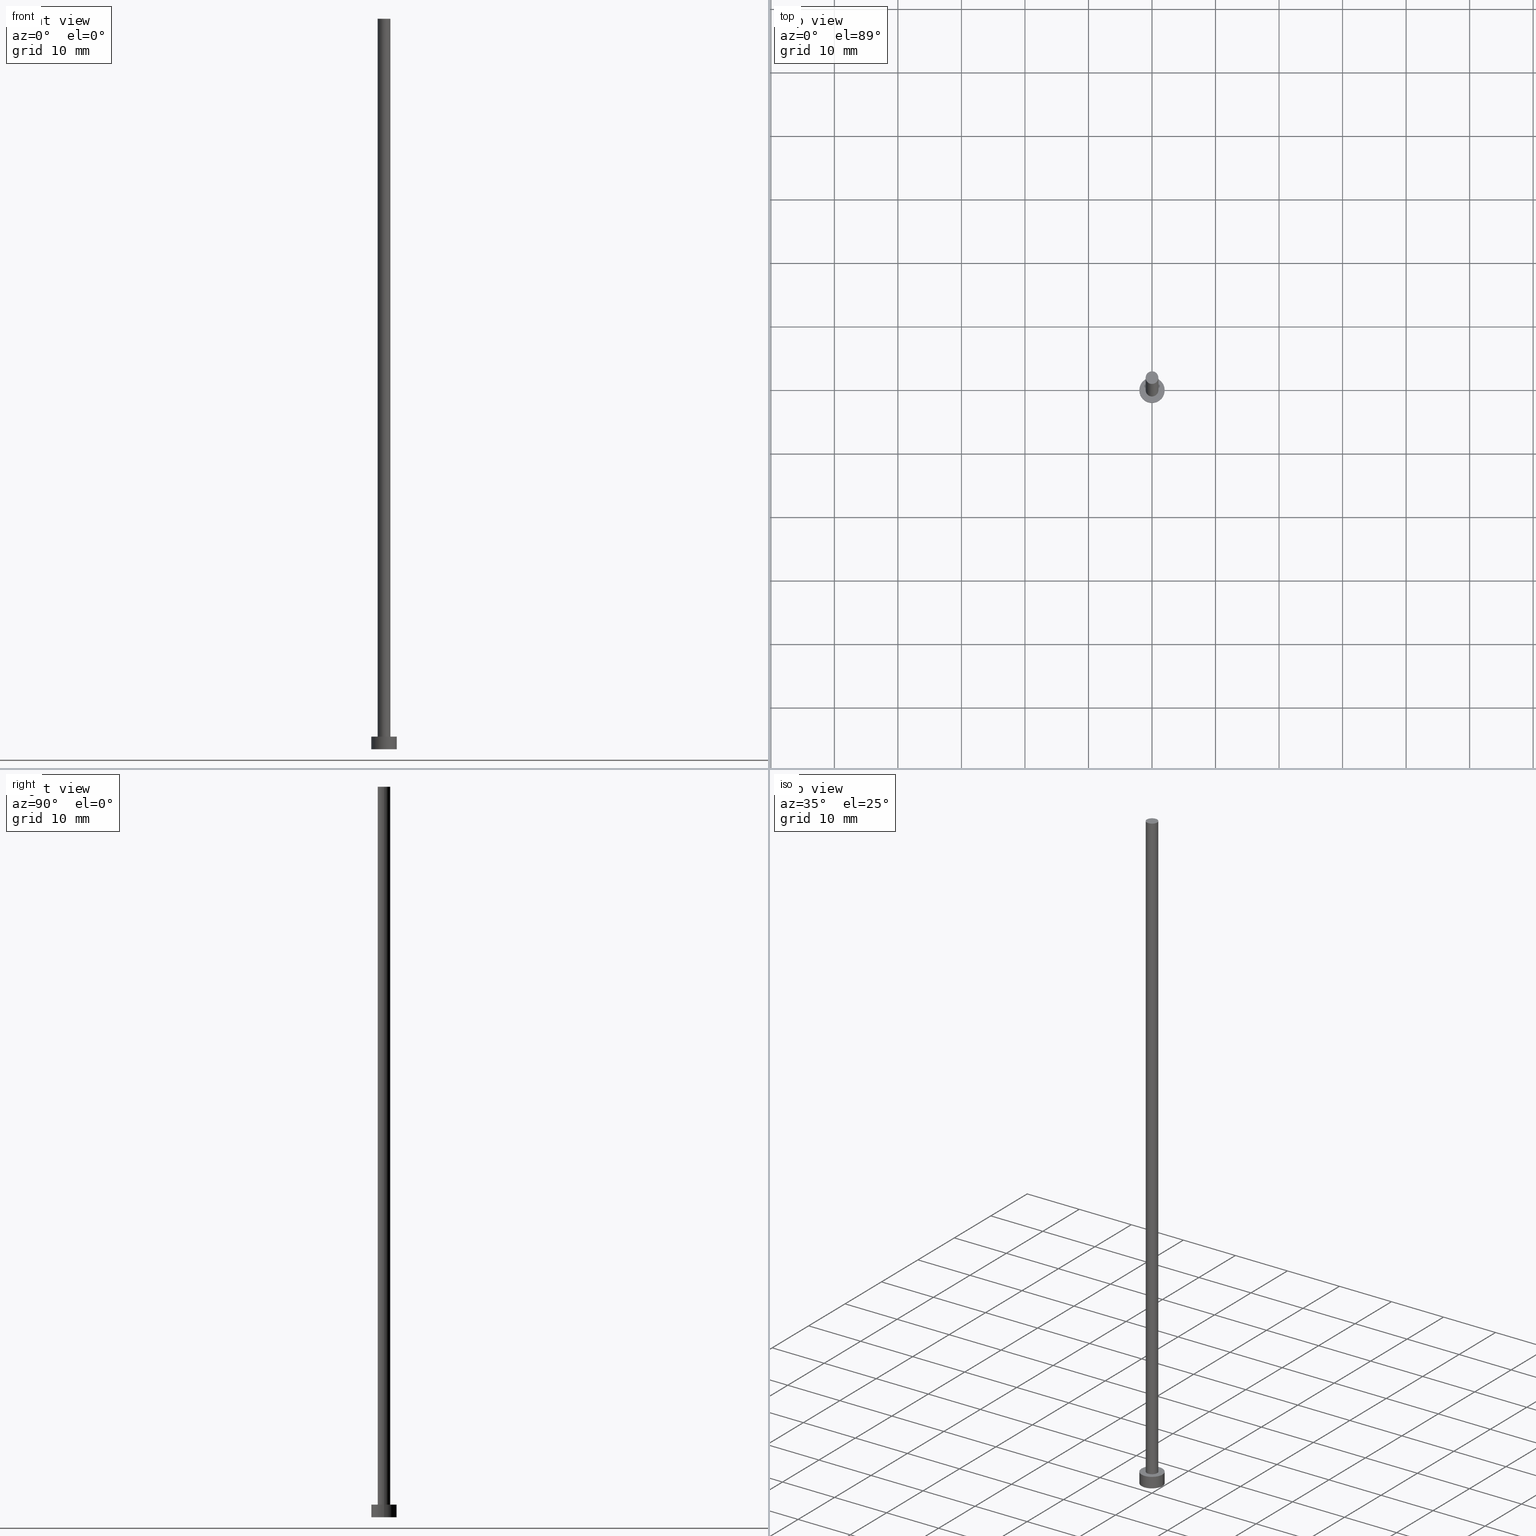
[diagram: canonical four-view strip — front | top / right | iso, engineering-drawing reading convention]
A machine part, canonical four-view strip (front | top / right | iso — engineering-drawing reading convention). The complete STEP part file that produces these views, byte-faithful:
ISO-10303-21;
HEADER;
FILE_DESCRIPTION (( 'STEP AP203' ),
    '1' );
FILE_NAME ('107b.STEP',
    '2024-02-22T09:03:25',
    ( '' ),
    ( '' ),
    'SwSTEP 2.0',
    'SolidWorks 2019',
    '' );
FILE_SCHEMA (( 'CONFIG_CONTROL_DESIGN' ));
ENDSEC;

DATA;
#1 = FACE_OUTER_BOUND ( 'NONE', #215, .T. ) ;
#2 = CARTESIAN_POINT ( 'NONE',  ( 0.000000000000000000, 0.000000000000000000, 2.000000000000000000 ) ) ;
#3 = LINE ( 'NONE', #217, #131 ) ;
#4 = DATE_AND_TIME ( #188, #133 ) ;
#5 = CALENDAR_DATE ( 2024, 22, 2 ) ;
#6 = APPROVAL_PERSON_ORGANIZATION ( #207, #223, #148 ) ;
#7 = APPROVAL_DATE_TIME ( #86, #244 ) ;
#8 = DIRECTION ( 'NONE',  ( 0.000000000000000000, 0.000000000000000000, 1.000000000000000000 ) ) ;
#9 = DIRECTION ( 'NONE',  ( 1.000000000000000000, 0.000000000000000000, -0.000000000000000000 ) ) ;
#10 = ORIENTED_EDGE ( 'NONE', *, *, #108, .T. ) ;
#11 = EDGE_CURVE ( 'NONE', #198, #74, #241, .T. ) ;
#12 = EDGE_LOOP ( 'NONE', ( #54, #33 ) ) ;
#13 = PRODUCT_DEFINITION_FORMATION_WITH_SPECIFIED_SOURCE ( 'LIBOVOLN�', '', #249, .NOT_KNOWN. ) ;
#14 = PERSON_AND_ORGANIZATION ( #246, #103 ) ;
#15 = DIRECTION ( 'NONE',  ( 1.000000000000000000, 0.000000000000000000, 0.000000000000000000 ) ) ;
#16 = ORIENTED_EDGE ( 'NONE', *, *, #234, .T. ) ;
#17 = APPROVAL ( #130, 'NEUR�EN�' ) ;
#18 = CARTESIAN_POINT ( 'NONE',  ( 0.000000000000000000, 0.000000000000000000, 115.0000000000000000 ) ) ;
#19 = DIRECTION ( 'NONE',  ( -1.000000000000000000, 0.000000000000000000, 0.000000000000000000 ) ) ;
#20 = DIRECTION ( 'NONE',  ( -0.000000000000000000, -0.000000000000000000, -1.000000000000000000 ) ) ;
#21 = CC_DESIGN_DATE_AND_TIME_ASSIGNMENT ( #175, #37, ( #113 ) ) ;
#22 = DIRECTION ( 'NONE',  ( -0.000000000000000000, -0.000000000000000000, -1.000000000000000000 ) ) ;
#23 = CYLINDRICAL_SURFACE ( 'NONE', #226, 2.000000000000000000 ) ;
#24 = PERSON_AND_ORGANIZATION ( #246, #103 ) ;
#25 = EDGE_CURVE ( 'NONE', #195, #136, #159, .T. ) ;
#26 = PERSON_AND_ORGANIZATION ( #246, #103 ) ;
#27 = APPROVAL_STATUS ( 'not_yet_approved' ) ;
#28 = AXIS2_PLACEMENT_3D ( 'NONE', #214, #35, #15 ) ;
#29 = APPROVAL_PERSON_ORGANIZATION ( #178, #17, #32 ) ;
#30 = COORDINATED_UNIVERSAL_TIME_OFFSET ( 1, 0, .AHEAD. ) ;
#31 = CARTESIAN_POINT ( 'NONE',  ( 0.000000000000000000, 0.000000000000000000, 0.000000000000000000 ) ) ;
#32 = APPROVAL_ROLE ( '' ) ;
#33 = ORIENTED_EDGE ( 'NONE', *, *, #194, .F. ) ;
#34 = PERSON_AND_ORGANIZATION_ROLE ( 'classification_officer' ) ;
#35 = DIRECTION ( 'NONE',  ( 0.000000000000000000, 0.000000000000000000, 1.000000000000000000 ) ) ;
#36 = CC_DESIGN_APPROVAL ( #17, ( #113 ) ) ;
#37 = DATE_TIME_ROLE ( 'classification_date' ) ;
#38 = EDGE_LOOP ( 'NONE', ( #180, #229, #179, #91 ) ) ;
#39 = ADVANCED_FACE ( 'NONE', ( #60, #201 ), #185, .T. ) ;
#40 = CYLINDRICAL_SURFACE ( 'NONE', #41, 2.000000000000000000 ) ;
#41 = AXIS2_PLACEMENT_3D ( 'NONE', #2, #166, #19 ) ;
#42 = DIRECTION ( 'NONE',  ( 1.000000000000000000, 0.000000000000000000, 0.000000000000000000 ) ) ;
#43 = DIRECTION ( 'NONE',  ( -1.000000000000000000, 0.000000000000000000, 0.000000000000000000 ) ) ;
#44 = CARTESIAN_POINT ( 'NONE',  ( 0.000000000000000000, 0.000000000000000000, 115.0000000000000000 ) ) ;
#45 = CARTESIAN_POINT ( 'NONE',  ( 0.000000000000000000, 0.000000000000000000, 115.0000000000000000 ) ) ;
#46 = APPLICATION_CONTEXT ( 'configuration controlled 3d designs of mechanical parts and assemblies' ) ;
#47 = APPLICATION_PROTOCOL_DEFINITION ( 'international standard', 'config_control_design', 1994, #46 ) ;
#48 = PERSON_AND_ORGANIZATION ( #246, #103 ) ;
#49 = EDGE_CURVE ( 'NONE', #152, #195, #196, .T. ) ;
#50 = ADVANCED_BREP_SHAPE_REPRESENTATION ( '107b', ( #66, #110 ), #210 ) ;
#51 = APPLICATION_CONTEXT ( 'configuration controlled 3d designs of mechanical parts and assemblies' ) ;
#52 = EDGE_LOOP ( 'NONE', ( #174, #16 ) ) ;
#53 = LOCAL_TIME ( 10, 3, 25.00000000000000000, #250 ) ;
#54 = ORIENTED_EDGE ( 'NONE', *, *, #65, .F. ) ;
#55 = ORIENTED_EDGE ( 'NONE', *, *, #212, .T. ) ;
#56 = EDGE_CURVE ( 'NONE', #198, #93, #105, .T. ) ;
#57 = ORIENTED_EDGE ( 'NONE', *, *, #11, .F. ) ;
#58 = DIRECTION ( 'NONE',  ( 1.000000000000000000, 0.000000000000000000, 0.000000000000000000 ) ) ;
#59 = PRODUCT_DEFINITION ( 'NEZN�M�', '', #13, #115 ) ;
#60 = FACE_BOUND ( 'NONE', #12, .T. ) ;
#61 = AXIS2_PLACEMENT_3D ( 'NONE', #64, #139, #233 ) ;
#62 = CARTESIAN_POINT ( 'NONE',  ( 1.000000000000000000, 1.224646799147353207E-16, 2.000000000000000000 ) ) ;
#63 = DIRECTION ( 'NONE',  ( 1.000000000000000000, 0.000000000000000000, 0.000000000000000000 ) ) ;
#64 = CARTESIAN_POINT ( 'NONE',  ( 0.000000000000000000, 0.000000000000000000, 2.000000000000000000 ) ) ;
#65 = EDGE_CURVE ( 'NONE', #213, #136, #200, .T. ) ;
#66 = MANIFOLD_SOLID_BREP ( 'P�idat vysunut�m3', #96 ) ;
#67 = PLANE ( 'NONE',  #182 ) ;
#68 = PRODUCT_RELATED_PRODUCT_CATEGORY ( 'detail', '', ( #249 ) ) ;
#69 = FACE_OUTER_BOUND ( 'NONE', #172, .T. ) ;
#70 =( LENGTH_UNIT ( ) NAMED_UNIT ( * ) SI_UNIT ( .MILLI., .METRE. ) );
#71 = DIRECTION ( 'NONE',  ( 1.000000000000000000, 0.000000000000000000, 0.000000000000000000 ) ) ;
#72 = DATE_AND_TIME ( #92, #155 ) ;
#73 = ORIENTED_EDGE ( 'NONE', *, *, #49, .T. ) ;
#74 = VERTEX_POINT ( 'NONE', #143 ) ;
#75 = SHAPE_DEFINITION_REPRESENTATION ( #157, #50 ) ;
#76 = ORIENTED_EDGE ( 'NONE', *, *, #56, .F. ) ;
#77 = AXIS2_PLACEMENT_3D ( 'NONE', #45, #203, #42 ) ;
#78 = DIRECTION ( 'NONE',  ( -0.000000000000000000, -0.000000000000000000, -1.000000000000000000 ) ) ;
#79 = ADVANCED_FACE ( 'NONE', ( #1 ), #40, .T. ) ;
#80 = CARTESIAN_POINT ( 'NONE',  ( 2.000000000000000000, 2.449293598294706414E-16, 0.000000000000000000 ) ) ;
#81 = FACE_OUTER_BOUND ( 'NONE', #90, .T. ) ;
#82 = CARTESIAN_POINT ( 'NONE',  ( 0.000000000000000000, 0.000000000000000000, 0.000000000000000000 ) ) ;
#83 = CARTESIAN_POINT ( 'NONE',  ( 1.000000000000000000, 1.224646799147353207E-16, 115.0000000000000000 ) ) ;
#84 = DIRECTION ( 'NONE',  ( 1.000000000000000000, 0.000000000000000000, 0.000000000000000000 ) ) ;
#85 = CIRCLE ( 'NONE', #169, 2.000000000000000000 ) ;
#86 = DATE_AND_TIME ( #5, #186 ) ;
#87 = CARTESIAN_POINT ( 'NONE',  ( 0.000000000000000000, 0.000000000000000000, 115.0000000000000000 ) ) ;
#88 = DIRECTION ( 'NONE',  ( 0.000000000000000000, 0.000000000000000000, 1.000000000000000000 ) ) ;
#89 = ORIENTED_EDGE ( 'NONE', *, *, #56, .T. ) ;
#90 = EDGE_LOOP ( 'NONE', ( #231, #156, #245, #177 ) ) ;
#91 = ORIENTED_EDGE ( 'NONE', *, *, #118, .F. ) ;
#92 = CALENDAR_DATE ( 2024, 22, 2 ) ;
#93 = VERTEX_POINT ( 'NONE', #142 ) ;
#94 = ORIENTED_EDGE ( 'NONE', *, *, #108, .F. ) ;
#95 = DIRECTION ( 'NONE',  ( -0.000000000000000000, -0.000000000000000000, -1.000000000000000000 ) ) ;
#96 = CLOSED_SHELL ( 'NONE', ( #153, #209, #79, #39, #163, #100, #254 ) ) ;
#97 = CIRCLE ( 'NONE', #225, 2.000000000000000000 ) ;
#98 = AXIS2_PLACEMENT_3D ( 'NONE', #141, #162, #63 ) ;
#99 = DIRECTION ( 'NONE',  ( 0.000000000000000000, 0.000000000000000000, 1.000000000000000000 ) ) ;
#100 = ADVANCED_FACE ( 'NONE', ( #81 ), #205, .T. ) ;
#101 = DIRECTION ( 'NONE',  ( -1.000000000000000000, 0.000000000000000000, 0.000000000000000000 ) ) ;
#102 = FACE_OUTER_BOUND ( 'NONE', #251, .T. ) ;
#103 = ORGANIZATION ( 'NEUR�EN�', 'NEUR�EN�', '' ) ;
#104 = CC_DESIGN_APPROVAL ( #223, ( #59 ) ) ;
#105 = LINE ( 'NONE', #237, #112 ) ;
#106 = CARTESIAN_POINT ( 'NONE',  ( -1.000000000000000000, 0.000000000000000000, 2.000000000000000000 ) ) ;
#107 = DATE_AND_TIME ( #222, #218 ) ;
#108 = EDGE_CURVE ( 'NONE', #93, #114, #97, .T. ) ;
#109 = APPROVAL_ROLE ( '' ) ;
#110 = AXIS2_PLACEMENT_3D ( 'NONE', #31, #242, #208 ) ;
#111 = PERSON_AND_ORGANIZATION_ROLE ( 'design_supplier' ) ;
#112 = VECTOR ( 'NONE', #187, 1000.000000000000000 ) ;
#113 = SECURITY_CLASSIFICATION ( '', '', #191 ) ;
#114 = VERTEX_POINT ( 'NONE', #80 ) ;
#115 = DESIGN_CONTEXT ( 'detailed design', #46, 'design' ) ;
#116 = ORIENTED_EDGE ( 'NONE', *, *, #248, .T. ) ;
#117 = APPROVAL_PERSON_ORGANIZATION ( #128, #244, #109 ) ;
#118 = EDGE_CURVE ( 'NONE', #152, #213, #3, .T. ) ;
#119 = DIRECTION ( 'NONE',  ( -0.000000000000000000, -0.000000000000000000, -1.000000000000000000 ) ) ;
#120 = CARTESIAN_POINT ( 'NONE',  ( 0.000000000000000000, 0.000000000000000000, 2.000000000000000000 ) ) ;
#121 = LINE ( 'NONE', #204, #140 ) ;
#122 = CC_DESIGN_PERSON_AND_ORGANIZATION_ASSIGNMENT ( #24, #224, ( #249 ) ) ;
#123 = CARTESIAN_POINT ( 'NONE',  ( 1.000000000000000000, 1.224646799147353207E-16, 115.0000000000000000 ) ) ;
#124 = CARTESIAN_POINT ( 'NONE',  ( 0.000000000000000000, 0.000000000000000000, 2.000000000000000000 ) ) ;
#125 = DATE_TIME_ROLE ( 'creation_date' ) ;
#126 = PERSON_AND_ORGANIZATION_ROLE ( 'creator' ) ;
#127 = AXIS2_PLACEMENT_3D ( 'NONE', #145, #88, #84 ) ;
#128 = PERSON_AND_ORGANIZATION ( #246, #103 ) ;
#129 = UNCERTAINTY_MEASURE_WITH_UNIT (LENGTH_MEASURE( 1.000000000000000082E-05 ), #70, 'distance_accuracy_value', 'NONE');
#130 = APPROVAL_STATUS ( 'not_yet_approved' ) ;
#131 = VECTOR ( 'NONE', #181, 1000.000000000000000 ) ;
#132 = EDGE_LOOP ( 'NONE', ( #94, #135 ) ) ;
#133 = LOCAL_TIME ( 10, 3, 25.00000000000000000, #151 ) ;
#134 = CC_DESIGN_PERSON_AND_ORGANIZATION_ASSIGNMENT ( #14, #34, ( #113 ) ) ;
#135 = ORIENTED_EDGE ( 'NONE', *, *, #160, .F. ) ;
#136 = VERTEX_POINT ( 'NONE', #62 ) ;
#137 = CC_DESIGN_SECURITY_CLASSIFICATION ( #113, ( #13 ) ) ;
#138 = CARTESIAN_POINT ( 'NONE',  ( 0.000000000000000000, 0.000000000000000000, 0.000000000000000000 ) ) ;
#139 = DIRECTION ( 'NONE',  ( 0.000000000000000000, 0.000000000000000000, 1.000000000000000000 ) ) ;
#140 = VECTOR ( 'NONE', #22, 1000.000000000000000 ) ;
#141 = CARTESIAN_POINT ( 'NONE',  ( 0.000000000000000000, 0.000000000000000000, 2.000000000000000000 ) ) ;
#142 = CARTESIAN_POINT ( 'NONE',  ( -2.000000000000000000, 0.000000000000000000, 0.000000000000000000 ) ) ;
#143 = CARTESIAN_POINT ( 'NONE',  ( 2.000000000000000000, 2.449293598294706414E-16, 2.000000000000000000 ) ) ;
#144 = CIRCLE ( 'NONE', #150, 2.000000000000000000 ) ;
#145 = CARTESIAN_POINT ( 'NONE',  ( 0.000000000000000000, 0.000000000000000000, 115.0000000000000000 ) ) ;
#146 = CC_DESIGN_PERSON_AND_ORGANIZATION_ASSIGNMENT ( #26, #227, ( #59 ) ) ;
#147 =( NAMED_UNIT ( * ) SI_UNIT ( $, .STERADIAN. ) SOLID_ANGLE_UNIT ( ) );
#148 = APPROVAL_ROLE ( '' ) ;
#149 = CC_DESIGN_PERSON_AND_ORGANIZATION_ASSIGNMENT ( #48, #126, ( #13 ) ) ;
#150 = AXIS2_PLACEMENT_3D ( 'NONE', #124, #8, #71 ) ;
#151 = COORDINATED_UNIVERSAL_TIME_OFFSET ( 1, 0, .AHEAD. ) ;
#152 = VERTEX_POINT ( 'NONE', #239 ) ;
#153 = ADVANCED_FACE ( 'NONE', ( #220 ), #253, .T. ) ;
#154 = CALENDAR_DATE ( 2024, 22, 2 ) ;
#155 = LOCAL_TIME ( 10, 3, 25.00000000000000000, #232 ) ;
#156 = ORIENTED_EDGE ( 'NONE', *, *, #49, .F. ) ;
#157 = PRODUCT_DEFINITION_SHAPE ( 'NONE', 'NONE',  #59 ) ;
#158 = APPROVAL_DATE_TIME ( #72, #17 ) ;
#159 = LINE ( 'NONE', #83, #176 ) ;
#160 = EDGE_CURVE ( 'NONE', #114, #93, #85, .T. ) ;
#161 = DIRECTION ( 'NONE',  ( 0.000000000000000000, 0.000000000000000000, 1.000000000000000000 ) ) ;
#162 = DIRECTION ( 'NONE',  ( 0.000000000000000000, 0.000000000000000000, 1.000000000000000000 ) ) ;
#163 = ADVANCED_FACE ( 'NONE', ( #235 ), #255, .F. ) ;
#164 = DIRECTION ( 'NONE',  ( 0.000000000000000000, 0.000000000000000000, 1.000000000000000000 ) ) ;
#165 = AXIS2_PLACEMENT_3D ( 'NONE', #138, #164, #238 ) ;
#166 = DIRECTION ( 'NONE',  ( -0.000000000000000000, -0.000000000000000000, -1.000000000000000000 ) ) ;
#167 = DIRECTION ( 'NONE',  ( 1.000000000000000000, 0.000000000000000000, -0.000000000000000000 ) ) ;
#168 =( NAMED_UNIT ( * ) PLANE_ANGLE_UNIT ( ) SI_UNIT ( $, .RADIAN. ) );
#169 = AXIS2_PLACEMENT_3D ( 'NONE', #221, #161, #58 ) ;
#170 = APPLICATION_PROTOCOL_DEFINITION ( 'international standard', 'config_control_design', 1994, #51 ) ;
#171 = APPROVAL_DATE_TIME ( #4, #223 ) ;
#172 = EDGE_LOOP ( 'NONE', ( #73, #116 ) ) ;
#173 = CC_DESIGN_DATE_AND_TIME_ASSIGNMENT ( #107, #125, ( #59 ) ) ;
#174 = ORIENTED_EDGE ( 'NONE', *, *, #11, .T. ) ;
#175 = DATE_AND_TIME ( #154, #53 ) ;
#176 = VECTOR ( 'NONE', #95, 1000.000000000000000 ) ;
#177 = ORIENTED_EDGE ( 'NONE', *, *, #65, .T. ) ;
#178 = PERSON_AND_ORGANIZATION ( #246, #103 ) ;
#179 = ORIENTED_EDGE ( 'NONE', *, *, #194, .T. ) ;
#180 = ORIENTED_EDGE ( 'NONE', *, *, #248, .F. ) ;
#181 = DIRECTION ( 'NONE',  ( -0.000000000000000000, -0.000000000000000000, -1.000000000000000000 ) ) ;
#182 = AXIS2_PLACEMENT_3D ( 'NONE', #87, #228, #9 ) ;
#183 = DIRECTION ( 'NONE',  ( 1.000000000000000000, 0.000000000000000000, 0.000000000000000000 ) ) ;
#184 = CARTESIAN_POINT ( 'NONE',  ( 0.000000000000000000, 0.000000000000000000, 2.000000000000000000 ) ) ;
#185 = PLANE ( 'NONE',  #193 ) ;
#186 = LOCAL_TIME ( 10, 3, 25.00000000000000000, #190 ) ;
#187 = DIRECTION ( 'NONE',  ( -0.000000000000000000, -0.000000000000000000, -1.000000000000000000 ) ) ;
#188 = CALENDAR_DATE ( 2024, 22, 2 ) ;
#189 = CIRCLE ( 'NONE', #98, 1.000000000000000000 ) ;
#190 = COORDINATED_UNIVERSAL_TIME_OFFSET ( 1, 0, .AHEAD. ) ;
#191 = SECURITY_CLASSIFICATION_LEVEL ( 'unclassified' ) ;
#192 = MECHANICAL_CONTEXT ( 'NONE', #51, 'mechanical' ) ;
#193 = AXIS2_PLACEMENT_3D ( 'NONE', #184, #216, #167 ) ;
#194 = EDGE_CURVE ( 'NONE', #136, #213, #189, .T. ) ;
#195 = VERTEX_POINT ( 'NONE', #123 ) ;
#196 = CIRCLE ( 'NONE', #77, 1.000000000000000000 ) ;
#197 = ORIENTED_EDGE ( 'NONE', *, *, #160, .T. ) ;
#198 = VERTEX_POINT ( 'NONE', #219 ) ;
#199 = DIRECTION ( 'NONE',  ( -1.000000000000000000, 0.000000000000000000, 0.000000000000000000 ) ) ;
#200 = CIRCLE ( 'NONE', #61, 1.000000000000000000 ) ;
#201 = FACE_OUTER_BOUND ( 'NONE', #52, .T. ) ;
#202 = CIRCLE ( 'NONE', #127, 1.000000000000000000 ) ;
#203 = DIRECTION ( 'NONE',  ( 0.000000000000000000, 0.000000000000000000, 1.000000000000000000 ) ) ;
#204 = CARTESIAN_POINT ( 'NONE',  ( 2.000000000000000000, 2.449293598294706414E-16, 2.000000000000000000 ) ) ;
#205 = CYLINDRICAL_SURFACE ( 'NONE', #247, 1.000000000000000000 ) ;
#206 = CC_DESIGN_PERSON_AND_ORGANIZATION_ASSIGNMENT ( #211, #111, ( #13 ) ) ;
#207 = PERSON_AND_ORGANIZATION ( #246, #103 ) ;
#208 = DIRECTION ( 'NONE',  ( 1.000000000000000000, 0.000000000000000000, 0.000000000000000000 ) ) ;
#209 = ADVANCED_FACE ( 'NONE', ( #102 ), #23, .T. ) ;
#210 =( GEOMETRIC_REPRESENTATION_CONTEXT ( 3 ) GLOBAL_UNCERTAINTY_ASSIGNED_CONTEXT ( ( #129 ) ) GLOBAL_UNIT_ASSIGNED_CONTEXT ( ( #70, #168, #147 ) ) REPRESENTATION_CONTEXT ( 'NONE', 'WORKASPACE' ) );
#211 = PERSON_AND_ORGANIZATION ( #246, #103 ) ;
#212 = EDGE_CURVE ( 'NONE', #74, #114, #121, .T. ) ;
#213 = VERTEX_POINT ( 'NONE', #106 ) ;
#214 = CARTESIAN_POINT ( 'NONE',  ( 0.000000000000000000, 0.000000000000000000, 2.000000000000000000 ) ) ;
#215 = EDGE_LOOP ( 'NONE', ( #230, #57, #89, #10 ) ) ;
#216 = DIRECTION ( 'NONE',  ( 0.000000000000000000, 0.000000000000000000, 1.000000000000000000 ) ) ;
#217 = CARTESIAN_POINT ( 'NONE',  ( -1.000000000000000000, 0.000000000000000000, 115.0000000000000000 ) ) ;
#218 = LOCAL_TIME ( 10, 3, 25.00000000000000000, #30 ) ;
#219 = CARTESIAN_POINT ( 'NONE',  ( -2.000000000000000000, 0.000000000000000000, 2.000000000000000000 ) ) ;
#220 = FACE_OUTER_BOUND ( 'NONE', #38, .T. ) ;
#221 = CARTESIAN_POINT ( 'NONE',  ( 0.000000000000000000, 0.000000000000000000, 0.000000000000000000 ) ) ;
#222 = CALENDAR_DATE ( 2024, 22, 2 ) ;
#223 = APPROVAL ( #240, 'NEUR�EN�' ) ;
#224 = PERSON_AND_ORGANIZATION_ROLE ( 'design_owner' ) ;
#225 = AXIS2_PLACEMENT_3D ( 'NONE', #82, #99, #183 ) ;
#226 = AXIS2_PLACEMENT_3D ( 'NONE', #120, #20, #43 ) ;
#227 = PERSON_AND_ORGANIZATION_ROLE ( 'creator' ) ;
#228 = DIRECTION ( 'NONE',  ( 0.000000000000000000, 0.000000000000000000, 1.000000000000000000 ) ) ;
#229 = ORIENTED_EDGE ( 'NONE', *, *, #25, .T. ) ;
#230 = ORIENTED_EDGE ( 'NONE', *, *, #212, .F. ) ;
#231 = ORIENTED_EDGE ( 'NONE', *, *, #25, .F. ) ;
#232 = COORDINATED_UNIVERSAL_TIME_OFFSET ( 1, 0, .AHEAD. ) ;
#233 = DIRECTION ( 'NONE',  ( 1.000000000000000000, 0.000000000000000000, 0.000000000000000000 ) ) ;
#234 = EDGE_CURVE ( 'NONE', #74, #198, #144, .T. ) ;
#235 = FACE_OUTER_BOUND ( 'NONE', #132, .T. ) ;
#236 = AXIS2_PLACEMENT_3D ( 'NONE', #44, #78, #101 ) ;
#237 = CARTESIAN_POINT ( 'NONE',  ( -2.000000000000000000, 0.000000000000000000, 2.000000000000000000 ) ) ;
#238 = DIRECTION ( 'NONE',  ( 1.000000000000000000, 0.000000000000000000, -0.000000000000000000 ) ) ;
#239 = CARTESIAN_POINT ( 'NONE',  ( -1.000000000000000000, 0.000000000000000000, 115.0000000000000000 ) ) ;
#240 = APPROVAL_STATUS ( 'not_yet_approved' ) ;
#241 = CIRCLE ( 'NONE', #28, 2.000000000000000000 ) ;
#242 = DIRECTION ( 'NONE',  ( 0.000000000000000000, 0.000000000000000000, 1.000000000000000000 ) ) ;
#243 = CC_DESIGN_APPROVAL ( #244, ( #13 ) ) ;
#244 = APPROVAL ( #27, 'NEUR�EN�' ) ;
#245 = ORIENTED_EDGE ( 'NONE', *, *, #118, .T. ) ;
#246 = PERSON ( 'NEUR�EN�', 'NEUR�EN�', 'NEUR�EN�', ('NEUR�EN�'), ('NEUR�EN�'), ('NEUR�EN�') ) ;
#247 = AXIS2_PLACEMENT_3D ( 'NONE', #18, #119, #199 ) ;
#248 = EDGE_CURVE ( 'NONE', #195, #152, #202, .T. ) ;
#249 = PRODUCT ( '107b', '107b', '', ( #192 ) ) ;
#250 = COORDINATED_UNIVERSAL_TIME_OFFSET ( 1, 0, .AHEAD. ) ;
#251 = EDGE_LOOP ( 'NONE', ( #252, #55, #197, #76 ) ) ;
#252 = ORIENTED_EDGE ( 'NONE', *, *, #234, .F. ) ;
#253 = CYLINDRICAL_SURFACE ( 'NONE', #236, 1.000000000000000000 ) ;
#254 = ADVANCED_FACE ( 'NONE', ( #69 ), #67, .T. ) ;
#255 = PLANE ( 'NONE',  #165 ) ;
ENDSEC;
END-ISO-10303-21;
